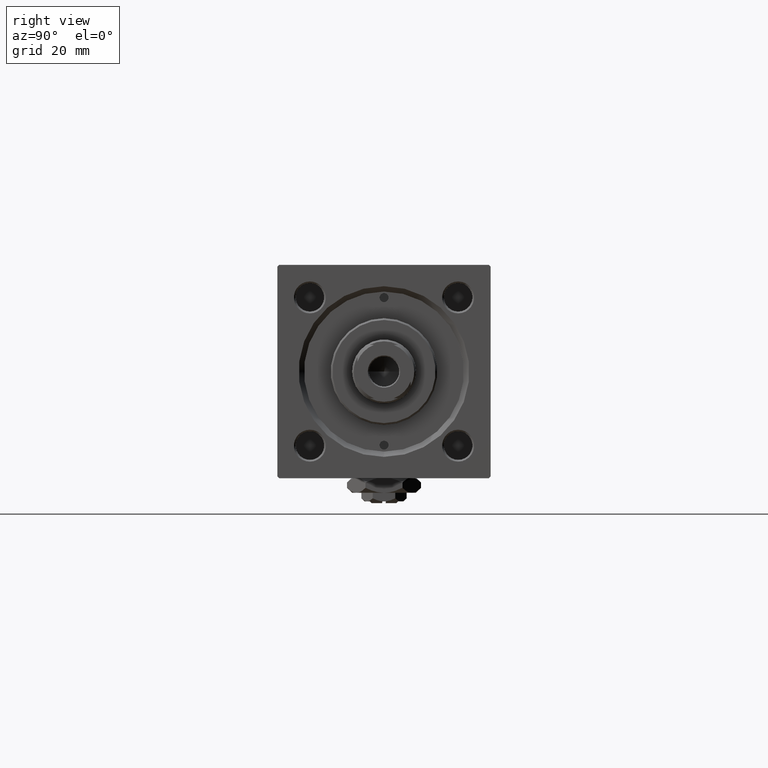
[diagram: clean part render]
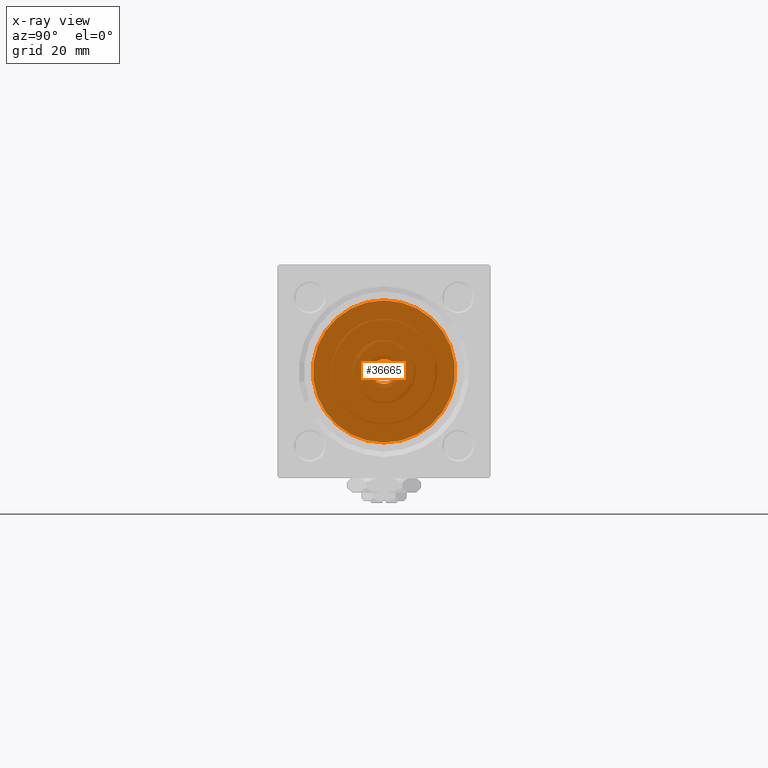
[diagram: x-ray — body ghosted, one internal face saturated and labeled with its STEP entity id]
A machine part, right view, then the same camera in x-ray: the body is ghosted and one INTERNAL B-rep face — a face not visible from any outside direction — is saturated and labeled: STEP entity #36665.
In plain terms, the highlighted planar face has unit normal (-1, 0, 0).
Its self-contained STEP definition (entity closure, byte-faithful):
#699 = EDGE_LOOP ( 'NONE', ( #16103, #50100 ) ) ;
#1220 = EDGE_CURVE ( 'NONE', #51220, #50554, #11560, .T. ) ;
#6797 = CARTESIAN_POINT ( 'NONE',  ( 37.00000000000000711, 0.000000000000000000, 0.000000000000000000 ) ) ;
#6916 = PLANE ( 'NONE',  #34713 ) ;
#6975 = DIRECTION ( 'NONE',  ( 0.000000000000000000, 0.000000000000000000, -1.000000000000000000 ) ) ;
#7173 = FACE_BOUND ( 'NONE', #699, .T. ) ;
#11560 = CIRCLE ( 'NONE', #13242, 20.00000000000000000 ) ;
#13242 = AXIS2_PLACEMENT_3D ( 'NONE', #24508, #21075, #28750 ) ;
#15649 = DIRECTION ( 'NONE',  ( -0.000000000000000000, 0.000000000000000000, 1.000000000000000000 ) ) ;
#16103 = ORIENTED_EDGE ( 'NONE', *, *, #44552, .T. ) ;
#16133 = CARTESIAN_POINT ( 'NONE',  ( 37.00000000000000000, -2.602085213965210642E-15, 20.00000000000000000 ) ) ;
#18468 = DIRECTION ( 'NONE',  ( 0.000000000000000000, 0.000000000000000000, 1.000000000000000000 ) ) ;
#19158 = DIRECTION ( 'NONE',  ( 1.000000000000000000, 0.000000000000000000, 0.000000000000000000 ) ) ;
#21075 = DIRECTION ( 'NONE',  ( 1.000000000000000000, 0.000000000000000000, 0.000000000000000000 ) ) ;
#24068 = CIRCLE ( 'NONE', #47750, 3.500000000000000000 ) ;
#24508 = CARTESIAN_POINT ( 'NONE',  ( 37.00000000000000000, -2.602085213965210642E-15, 0.000000000000000000 ) ) ;
#24844 = AXIS2_PLACEMENT_3D ( 'NONE', #6797, #31426, #18468 ) ;
#27568 = DIRECTION ( 'NONE',  ( -1.000000000000000000, 0.000000000000000000, -0.000000000000000000 ) ) ;
#28750 = DIRECTION ( 'NONE',  ( 0.000000000000000000, 0.000000000000000000, -1.000000000000000000 ) ) ;
#31015 = CARTESIAN_POINT ( 'NONE',  ( 37.00000000000000000, 0.000000000000000000, 0.000000000000000000 ) ) ;
#31426 = DIRECTION ( 'NONE',  ( -1.000000000000000000, 0.000000000000000000, -0.000000000000000000 ) ) ;
#31975 = ORIENTED_EDGE ( 'NONE', *, *, #1220, .T. ) ;
#32516 = AXIS2_PLACEMENT_3D ( 'NONE', #51763, #19158, #6975 ) ;
#34713 = AXIS2_PLACEMENT_3D ( 'NONE', #31015, #35012, #15649 ) ;
#35012 = DIRECTION ( 'NONE',  ( -1.000000000000000000, 0.000000000000000000, -0.000000000000000000 ) ) ;
#36665 = ADVANCED_FACE ( 'NONE', ( #7173, #38982 ), #6916, .F. ) ;
#37022 = DIRECTION ( 'NONE',  ( 0.000000000000000000, 0.000000000000000000, 1.000000000000000000 ) ) ;
#38454 = CIRCLE ( 'NONE', #32516, 20.00000000000000000 ) ;
#38982 = FACE_OUTER_BOUND ( 'NONE', #47356, .T. ) ;
#40409 = CARTESIAN_POINT ( 'NONE',  ( 37.00000000000000711, 0.000000000000000000, 3.500000000000000000 ) ) ;
#40568 = ORIENTED_EDGE ( 'NONE', *, *, #49679, .T. ) ;
#40738 = CARTESIAN_POINT ( 'NONE',  ( 37.00000000000000711, 0.000000000000000000, 0.000000000000000000 ) ) ;
#41656 = CARTESIAN_POINT ( 'NONE',  ( 37.00000000000000711, 4.286263797015736595E-16, -3.500000000000000000 ) ) ;
#44552 = EDGE_CURVE ( 'NONE', #49415, #52263, #51104, .T. ) ;
#46459 = EDGE_CURVE ( 'NONE', #52263, #49415, #24068, .T. ) ;
#47356 = EDGE_LOOP ( 'NONE', ( #40568, #31975 ) ) ;
#47687 = CARTESIAN_POINT ( 'NONE',  ( 37.00000000000000000, -1.527916156705046464E-16, -20.00000000000000000 ) ) ;
#47750 = AXIS2_PLACEMENT_3D ( 'NONE', #40738, #27568, #37022 ) ;
#49415 = VERTEX_POINT ( 'NONE', #40409 ) ;
#49679 = EDGE_CURVE ( 'NONE', #50554, #51220, #38454, .T. ) ;
#50100 = ORIENTED_EDGE ( 'NONE', *, *, #46459, .T. ) ;
#50554 = VERTEX_POINT ( 'NONE', #16133 ) ;
#51104 = CIRCLE ( 'NONE', #24844, 3.500000000000000000 ) ;
#51220 = VERTEX_POINT ( 'NONE', #47687 ) ;
#51763 = CARTESIAN_POINT ( 'NONE',  ( 37.00000000000000000, -2.602085213965210642E-15, 0.000000000000000000 ) ) ;
#52263 = VERTEX_POINT ( 'NONE', #41656 ) ;